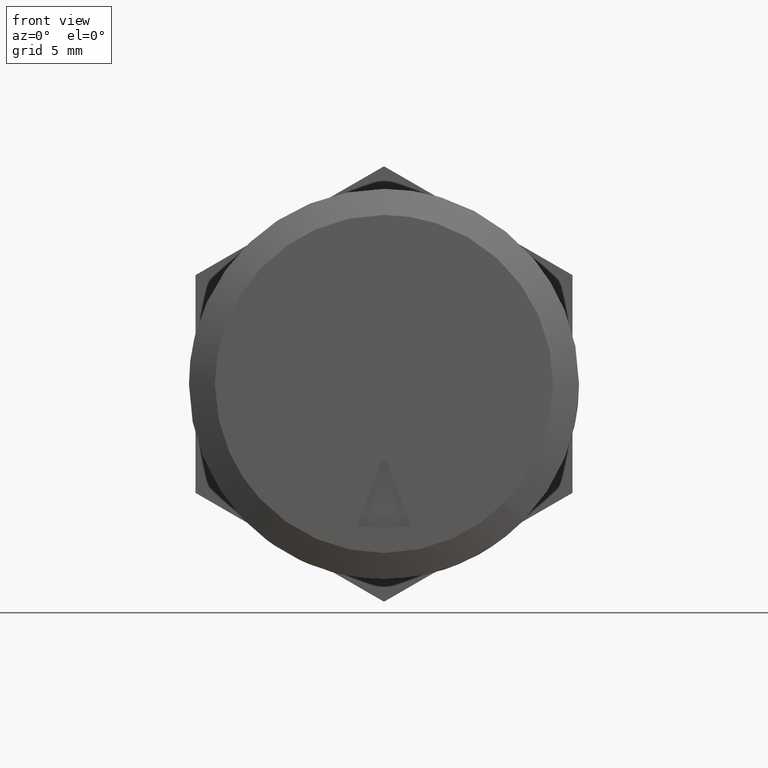
[diagram: clean part render]
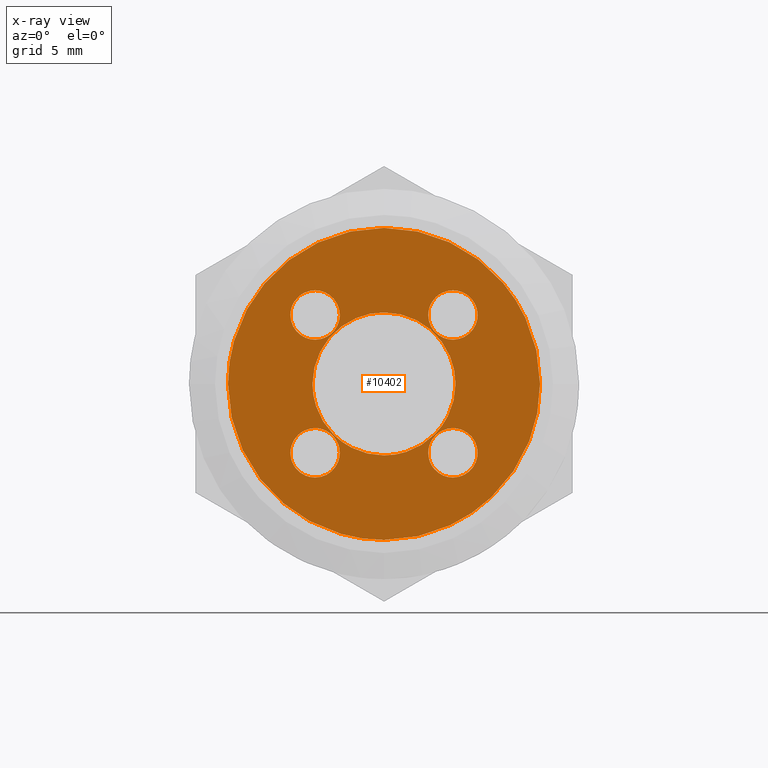
[diagram: x-ray — body ghosted, one internal face saturated and labeled with its STEP entity id]
A machine part, front view, then the same camera in x-ray: the body is ghosted and one INTERNAL B-rep face — a face not visible from any outside direction — is saturated and labeled: STEP entity #10402.
In plain terms, the highlighted face is a freeform B-spline surface patch.
Its self-contained STEP definition (entity closure, byte-faithful):
#8744=CARTESIAN_POINT('',(-1.900000000000000,-5.499999999999878,-0.000001159487556));
#8745=VERTEX_POINT('',#8744);
#8746=CARTESIAN_POINT('',(-1.900000144913863,-3.922877780427586,-3.855001258363628));
#8747=VERTEX_POINT('',#8746);
#8748=CARTESIAN_POINT('',(-1.900000000000000,-5.499999999999878,-0.000001159487556));
#8749=CARTESIAN_POINT('',(-1.900000021745562,-5.500256035758917,-0.578476942839209));
#8750=CARTESIAN_POINT('',(-1.900000061048671,-5.333541669358327,-1.624018445173064));
#8751=CARTESIAN_POINT('',(-1.900000109800236,-4.718162404846023,-2.920908463455525));
#8752=CARTESIAN_POINT('',(-1.900000134773875,-4.187996385018957,-3.585257172860245));
#8753=CARTESIAN_POINT('',(-1.900000144913863,-3.922877780427586,-3.855001258363628));
#8754=B_SPLINE_CURVE_WITH_KNOTS('',3,(#8748,#8749,#8750,#8751,#8752,#8753),.UNSPECIFIED.,.F.,.U.,(4,1,1,4),(0.000000028144667,1.735391692192443,3.137042397964578,4.271718564324931),.UNSPECIFIED.);
#8755=EDGE_CURVE('',#8745,#8747,#8754,.T.);
#8757=CARTESIAN_POINT('',(-1.900000000000000,0.0,5.500000000000000));
#8758=VERTEX_POINT('',#8757);
#8759=CARTESIAN_POINT('',(-1.900000000000000,0.0,5.500000000000000));
#8760=CARTESIAN_POINT('',(-1.900000000000003,-0.427471766125014,5.500069861130847));
#8761=CARTESIAN_POINT('',(-1.899999999999994,-1.304882114691370,5.397224140319601));
#8762=CARTESIAN_POINT('',(-1.900000000000001,-2.601071767974286,4.915565116795840));
#8763=CARTESIAN_POINT('',(-1.900000000000006,-3.603397544905781,4.209567924990979));
#8764=CARTESIAN_POINT('',(-1.899999999999998,-4.386389311207060,3.366537396547856));
#8765=CARTESIAN_POINT('',(-1.899999999999997,-4.911830123918239,2.547982802030945));
#8766=CARTESIAN_POINT('',(-1.900000000000006,-5.373012465752053,1.394763039153312));
#8767=CARTESIAN_POINT('',(-1.899999999999996,-5.500260434145294,0.539993329844090));
#8768=CARTESIAN_POINT('',(-1.900000000000000,-5.499999999999878,-0.000001159487556));
#8769=B_SPLINE_CURVE_WITH_KNOTS('',3,(#8759,#8760,#8761,#8762,#8763,#8764,#8765,#8766,#8767,#8768),.UNSPECIFIED.,.F.,.U.,(4,1,1,1,1,1,1,4),(0.000000112228303,1.282413280695518,2.632336100113950,4.117246115095687,4.927152487635967,6.074599980345520,7.019551738392568,8.639434659329234),.UNSPECIFIED.);
#8770=EDGE_CURVE('',#8758,#8745,#8769,.T.);
#8772=CARTESIAN_POINT('',(-1.900000000000000,5.499999999999878,0.000001159487478));
#8773=VERTEX_POINT('',#8772);
#8774=CARTESIAN_POINT('',(-1.900000000000000,5.499999999999878,0.000001159487478));
#8775=CARTESIAN_POINT('',(-1.900000000000003,5.500246139093367,0.539990094129131));
#8776=CARTESIAN_POINT('',(-1.899999999999998,5.369692831083753,1.417275894956246));
#8777=CARTESIAN_POINT('',(-1.900000000000002,4.926692798724795,2.505461571684657));
#8778=CARTESIAN_POINT('',(-1.899999999999998,4.412505536808818,3.328571445191206));
#8779=CARTESIAN_POINT('',(-1.900000000000005,3.854927591777241,3.951405387384738));
#8780=CARTESIAN_POINT('',(-1.899999999999998,3.196382955693775,4.498644622342848));
#8781=CARTESIAN_POINT('',(-1.900000000000003,2.485067710105123,4.936959871818087));
#8782=CARTESIAN_POINT('',(-1.899999999999998,1.394770400552940,5.373028578170522));
#8783=CARTESIAN_POINT('',(-1.900000000000002,0.539992265399040,5.500251964573114));
#8784=CARTESIAN_POINT('',(-1.900000000000000,0.0,5.500000000000000));
#8785=B_SPLINE_CURVE_WITH_KNOTS('',3,(#8774,#8775,#8776,#8777,#8778,#8779,#8780,#8781,#8782,#8783,#8784),.UNSPECIFIED.,.F.,.U.,(4,1,1,1,1,1,1,1,4),(0.000000112630241,1.619883118908328,2.632335702163530,3.509795483118065,4.522188778143863,5.129638733763747,6.074599061763889,7.019550676261298,8.639433352308371),.UNSPECIFIED.);
#8786=EDGE_CURVE('',#8773,#8758,#8785,.T.);
#8788=CARTESIAN_POINT('',(-1.899999855086133,3.855000648934801,-3.922877160268317));
#8789=VERTEX_POINT('',#8788);
#8790=CARTESIAN_POINT('',(-1.899999855086133,3.855000648934801,-3.922877160268317));
#8791=CARTESIAN_POINT('',(-1.899999865098265,4.130848320214632,-3.651844533393396));
#8792=CARTESIAN_POINT('',(-1.899999889891083,4.683297676475686,-2.980692893815518));
#8793=CARTESIAN_POINT('',(-1.899999938660321,5.325869627670055,-1.660488900340414));
#8794=CARTESIAN_POINT('',(-1.899999978150187,5.500308202324487,-0.591482581261859));
#8795=CARTESIAN_POINT('',(-1.900000000000000,5.499999999999878,0.000001159487478));
#8796=B_SPLINE_CURVE_WITH_KNOTS('',3,(#8790,#8791,#8792,#8793,#8794,#8795),.UNSPECIFIED.,.F.,.U.,(4,1,1,4),(0.000000031433248,1.160175436621289,2.593324617411317,4.367715457707561),.UNSPECIFIED.);
#8797=EDGE_CURVE('',#8789,#8773,#8796,.T.);
#8898=CARTESIAN_POINT('',(-1.900000000000000,0.0,-5.500000000000000));
#8899=VERTEX_POINT('',#8898);
#8900=CARTESIAN_POINT('',(-1.900000144913863,-3.922877780427586,-3.855001258363628));
#8901=CARTESIAN_POINT('',(-1.900000136079789,-3.683735856855880,-4.098409301250761));
#8902=CARTESIAN_POINT('',(-1.900000117375042,-3.177390477443772,-4.525727324279440));
#8903=CARTESIAN_POINT('',(-1.900000082993953,-2.246680484338069,-5.060132092102045));
#8904=CARTESIAN_POINT('',(-1.900000043697219,-1.182901614092432,-5.415707147317415));
#8905=CARTESIAN_POINT('',(-1.900000014285890,-0.386724948520046,-5.500049172976234));
#8906=CARTESIAN_POINT('',(-1.900000000000000,0.0,-5.500000000000000));
#8907=B_SPLINE_CURVE_WITH_KNOTS('',3,(#8900,#8901,#8902,#8903,#8904,#8905,#8906),.UNSPECIFIED.,.F.,.U.,(4,1,1,1,4),(0.000000031421866,1.023682148530090,1.979125426225063,3.207539454538742,4.367714643439112),.UNSPECIFIED.);
#8908=EDGE_CURVE('',#8747,#8899,#8907,.T.);
#8933=CARTESIAN_POINT('',(-1.900000000000000,0.0,-5.500000000000000));
#8934=CARTESIAN_POINT('',(-1.899999978254219,0.578481605489840,-5.500281685858573));
#8935=CARTESIAN_POINT('',(-1.899999938951707,1.624007376511118,-5.333508787037555));
#8936=CARTESIAN_POINT('',(-1.899999890199565,2.920912828327305,-4.718174244668924));
#8937=CARTESIAN_POINT('',(-1.899999865226165,3.585255264861009,-4.187993752593749));
#8938=CARTESIAN_POINT('',(-1.899999855086133,3.855000648934801,-3.922877160268317));
#8939=B_SPLINE_CURVE_WITH_KNOTS('',3,(#8933,#8934,#8935,#8936,#8937,#8938),.UNSPECIFIED.,.F.,.U.,(4,1,1,4),(0.000000028134092,1.735392026104024,3.137043001537592,4.271719386180386),.UNSPECIFIED.);
#8940=EDGE_CURVE('',#8899,#8789,#8939,.T.);
#8984=CARTESIAN_POINT('',(-1.900000000000000,6.750756020355018,4.073089754527432));
#8985=VERTEX_POINT('',#8984);
#8991=CARTESIAN_POINT('',(-1.900000000000000,5.300000000000000,3.400000000000000));
#8992=VERTEX_POINT('',#8991);
#8993=CARTESIAN_POINT('',(-1.900000000000000,6.750756020355018,4.073089754527432));
#8994=CARTESIAN_POINT('',(-1.899999999999999,6.584410424872975,3.875897173757073));
#8995=CARTESIAN_POINT('',(-1.900000000000001,6.252654712064532,3.616342403200095));
#8996=CARTESIAN_POINT('',(-1.899999999999999,5.729863795769842,3.431872732759384));
#8997=CARTESIAN_POINT('',(-1.900000000000000,5.437562036558970,3.399983187578748));
#8998=CARTESIAN_POINT('',(-1.900000000000000,5.300000000000000,3.400000000000000));
#8999=B_SPLINE_CURVE_WITH_KNOTS('',3,(#8993,#8994,#8995,#8996,#8997,#8998),.UNSPECIFIED.,.F.,.U.,(4,1,1,4),(0.000000034004815,0.773803736119652,1.238080433504584,1.650773880218344),.UNSPECIFIED.);
#9000=EDGE_CURVE('',#8985,#8992,#8999,.T.);
#9002=CARTESIAN_POINT('',(-1.900000000000000,3.400000000000952,5.300001901169807));
#9003=VERTEX_POINT('',#9002);
#9004=CARTESIAN_POINT('',(-1.900000000000000,5.300000000000000,3.400000000000000));
#9005=CARTESIAN_POINT('',(-1.900000000000001,5.035676603651211,3.399635109457191));
#9006=CARTESIAN_POINT('',(-1.900000000000002,4.600753760659374,3.492373826798862));
#9007=CARTESIAN_POINT('',(-1.899999999999997,4.066536850233070,3.821534553216335));
#9008=CARTESIAN_POINT('',(-1.900000000000002,3.728876615567380,4.194124201753500));
#9009=CARTESIAN_POINT('',(-1.899999999999995,3.469604805633634,4.693910568922068));
#9010=CARTESIAN_POINT('',(-1.900000000000003,3.399781939520689,5.066797571958817));
#9011=CARTESIAN_POINT('',(-1.900000000000000,3.400000000000952,5.300001901169807));
#9012=B_SPLINE_CURVE_WITH_KNOTS('',3,(#9004,#9005,#9006,#9007,#9008,#9009,#9010,#9011),.UNSPECIFIED.,.F.,.U.,(4,1,1,1,1,4),(0.000000162534121,0.792783115249452,1.305784659463412,1.865346624258268,2.285077323863607,2.984588985802690),.UNSPECIFIED.);
#9013=EDGE_CURVE('',#8992,#9003,#9012,.T.);
#9015=CARTESIAN_POINT('',(-1.900000000000000,5.300000000000000,7.200000000000000));
#9016=VERTEX_POINT('',#9015);
#9017=CARTESIAN_POINT('',(-1.900000000000000,3.400000000000952,5.300001901169807));
#9018=CARTESIAN_POINT('',(-1.900000000000006,3.399891547411104,5.502090334163723));
#9019=CARTESIAN_POINT('',(-1.899999999999989,3.452599069752543,5.828434375074056));
#9020=CARTESIAN_POINT('',(-1.900000000000007,3.674067261422702,6.328283465089922));
#9021=CARTESIAN_POINT('',(-1.899999999999995,3.974233911688764,6.694087187392213));
#9022=CARTESIAN_POINT('',(-1.900000000000005,4.357465774557809,6.963803820689980));
#9023=CARTESIAN_POINT('',(-1.899999999999997,4.771557068126454,7.147412318703127));
#9024=CARTESIAN_POINT('',(-1.900000000000003,5.097910913390828,7.200109657193500));
#9025=CARTESIAN_POINT('',(-1.900000000000000,5.300000000000000,7.200000000000000));
#9026=B_SPLINE_CURVE_WITH_KNOTS('',3,(#9017,#9018,#9019,#9020,#9021,#9022,#9023,#9024,#9025),.UNSPECIFIED.,.F.,.U.,(4,1,1,1,1,1,4),(0.000000165135894,0.606236166463075,0.979317983312649,1.632161870885991,2.005268255849750,2.378350895070423,2.984586842687752),.UNSPECIFIED.);
#9027=EDGE_CURVE('',#9003,#9016,#9026,.T.);
#9029=CARTESIAN_POINT('',(-1.900000000000000,6.607873367265194,6.678210960470915));
#9030=VERTEX_POINT('',#9029);
#9031=CARTESIAN_POINT('',(-1.900000000000000,5.300000000000000,7.200000000000000));
#9032=CARTESIAN_POINT('',(-1.899999999999999,5.555497670276352,7.200323593245508));
#9033=CARTESIAN_POINT('',(-1.900000000000006,6.036035061401725,7.101415081056256));
#9034=CARTESIAN_POINT('',(-1.899999999999995,6.444485630257391,6.833511376513540));
#9035=CARTESIAN_POINT('',(-1.900000000000000,6.607873367265194,6.678210960470915));
#9036=B_SPLINE_CURVE_WITH_KNOTS('',3,(#9031,#9032,#9033,#9034,#9035),.UNSPECIFIED.,.F.,.U.,(4,1,4),(0.000000040131645,0.766343382260520,1.442548272464375),.UNSPECIFIED.);
#9037=EDGE_CURVE('',#9016,#9030,#9036,.T.);
#9119=CARTESIAN_POINT('',(-1.900000000000000,7.199999999999049,5.299998098830194));
#9120=VERTEX_POINT('',#9119);
#9121=CARTESIAN_POINT('',(-1.900000000000000,6.607873367265194,6.678210960470915));
#9122=CARTESIAN_POINT('',(-1.900000000000008,6.806287992045338,6.490502806594102));
#9123=CARTESIAN_POINT('',(-1.899999999999985,7.100818650513988,6.054763383722621));
#9124=CARTESIAN_POINT('',(-1.900000000000009,7.200236050398095,5.540971461369709));
#9125=CARTESIAN_POINT('',(-1.900000000000000,7.199999999999049,5.299998098830194));
#9126=B_SPLINE_CURVE_WITH_KNOTS('',3,(#9121,#9122,#9123,#9124,#9125),.UNSPECIFIED.,.F.,.U.,(4,1,4),(0.000000039091810,0.819201761397435,1.542041419103935),.UNSPECIFIED.);
#9127=EDGE_CURVE('',#9030,#9120,#9126,.T.);
#9129=CARTESIAN_POINT('',(-1.900000000000000,7.199999999999049,5.299998098830194));
#9130=CARTESIAN_POINT('',(-1.899999999999999,7.200060493483186,5.119376940979016));
#9131=CARTESIAN_POINT('',(-1.900000000000008,7.136144441801891,4.674796234144504));
#9132=CARTESIAN_POINT('',(-1.899999999999991,6.921545730710995,4.274467089592965));
#9133=CARTESIAN_POINT('',(-1.900000000000000,6.750756020355018,4.073089754527432));
#9134=B_SPLINE_CURVE_WITH_KNOTS('',3,(#9129,#9130,#9131,#9132,#9133),.UNSPECIFIED.,.F.,.U.,(4,1,4),(0.000000036649615,0.541870521184850,1.333815032398454),.UNSPECIFIED.);
#9135=EDGE_CURVE('',#9120,#8985,#9134,.T.);
#9180=CARTESIAN_POINT('',(-1.900000000000000,6.750756020355019,-6.526910245472566));
#9181=VERTEX_POINT('',#9180);
#9187=CARTESIAN_POINT('',(-1.900000000000000,5.300000000000000,-7.200000000000000));
#9188=VERTEX_POINT('',#9187);
#9189=CARTESIAN_POINT('',(-1.900000000000000,6.750756020355019,-6.526910245472566));
#9190=CARTESIAN_POINT('',(-1.900000000000001,6.650853976626253,-6.645106891841190));
#9191=CARTESIAN_POINT('',(-1.899999999999999,6.434643881305941,-6.845053541992979));
#9192=CARTESIAN_POINT('',(-1.900000000000002,5.953206269034140,-7.118185023990684));
#9193=CARTESIAN_POINT('',(-1.899999999999998,5.557985295778908,-7.200312973364336));
#9194=CARTESIAN_POINT('',(-1.900000000000000,5.300000000000000,-7.200000000000000));
#9195=B_SPLINE_CURVE_WITH_KNOTS('',3,(#9189,#9190,#9191,#9192,#9193,#9194),.UNSPECIFIED.,.F.,.U.,(4,1,1,4),(0.000000034004507,0.464283210153325,0.876969463910795,1.650773880218345),.UNSPECIFIED.);
#9196=EDGE_CURVE('',#9181,#9188,#9195,.T.);
#9198=CARTESIAN_POINT('',(-1.900000000000000,3.400000000000952,-5.299998098830193));
#9199=VERTEX_POINT('',#9198);
#9200=CARTESIAN_POINT('',(-1.900000000000000,5.300000000000000,-7.200000000000000));
#9201=CARTESIAN_POINT('',(-1.900000000000001,5.097914048860588,-7.200104723550976));
#9202=CARTESIAN_POINT('',(-1.899999999999998,4.756003913662746,-7.144917567819674));
#9203=CARTESIAN_POINT('',(-1.900000000000003,4.343667706537216,-6.955994444863758));
#9204=CARTESIAN_POINT('',(-1.899999999999996,4.002229438447227,-6.709261452162714));
#9205=CARTESIAN_POINT('',(-1.900000000000007,3.721699259168628,-6.391977850986773));
#9206=CARTESIAN_POINT('',(-1.899999999999991,3.469588961278545,-5.906098011681480));
#9207=CARTESIAN_POINT('',(-1.900000000000005,3.399786817767295,-5.533199377372097));
#9208=CARTESIAN_POINT('',(-1.900000000000000,3.400000000000952,-5.299998098830193));
#9209=B_SPLINE_CURVE_WITH_KNOTS('',3,(#9200,#9201,#9202,#9203,#9204,#9205,#9206,#9207,#9208),.UNSPECIFIED.,.F.,.U.,(4,1,1,1,1,1,4),(0.000000162533136,0.606236599536032,1.025962481841940,1.352426034539171,1.865346624257962,2.285077323863459,2.984588985802698),.UNSPECIFIED.);
#9210=EDGE_CURVE('',#9188,#9199,#9209,.T.);
#9212=CARTESIAN_POINT('',(-1.900000000000000,5.300000000000000,-3.400000000000000));
#9213=VERTEX_POINT('',#9212);
#9214=CARTESIAN_POINT('',(-1.900000000000000,3.400000000000952,-5.299998098830193));
#9215=CARTESIAN_POINT('',(-1.900000000000003,3.399639464346517,-5.035667419093749));
#9216=CARTESIAN_POINT('',(-1.899999999999996,3.479131938509391,-4.662905889383979));
#9217=CARTESIAN_POINT('',(-1.900000000000004,3.742489193767629,-4.184519123540714));
#9218=CARTESIAN_POINT('',(-1.899999999999996,4.033400365013573,-3.855466246091830));
#9219=CARTESIAN_POINT('',(-1.900000000000004,4.385022140253471,-3.620574354559421));
#9220=CARTESIAN_POINT('',(-1.899999999999996,4.802648583389670,-3.447581547689108));
#9221=CARTESIAN_POINT('',(-1.900000000000004,5.097907336834509,-3.399888005074136));
#9222=CARTESIAN_POINT('',(-1.900000000000000,5.300000000000000,-3.400000000000000));
#9223=B_SPLINE_CURVE_WITH_KNOTS('',3,(#9214,#9215,#9216,#9217,#9218,#9219,#9220,#9221,#9222),.UNSPECIFIED.,.F.,.U.,(4,1,1,1,1,1,4),(0.000000165136518,0.792782548036429,1.119241596416902,1.632161870886105,2.098529449097416,2.378350895070473,2.984586842687742),.UNSPECIFIED.);
#9224=EDGE_CURVE('',#9199,#9213,#9223,.T.);
#9226=CARTESIAN_POINT('',(-1.900000000000000,6.607873367265194,-3.921789039529084));
#9227=VERTEX_POINT('',#9226);
#9228=CARTESIAN_POINT('',(-1.900000000000000,5.300000000000000,-3.400000000000000));
#9229=CARTESIAN_POINT('',(-1.900000000000000,5.525420902281883,-3.399818792029521));
#9230=CARTESIAN_POINT('',(-1.900000000000001,6.006108303664526,-3.486644563152126));
#9231=CARTESIAN_POINT('',(-1.899999999999998,6.422766276723548,-3.745682800814752));
#9232=CARTESIAN_POINT('',(-1.900000000000000,6.607873367265194,-3.921789039529084));
#9233=B_SPLINE_CURVE_WITH_KNOTS('',3,(#9228,#9229,#9230,#9231,#9232),.UNSPECIFIED.,.F.,.U.,(4,1,4),(0.000000040131739,0.676204930341097,1.442548272464372),.UNSPECIFIED.);
#9234=EDGE_CURVE('',#9213,#9227,#9233,.T.);
#9314=CARTESIAN_POINT('',(-1.900000000000000,7.199999999999050,-5.300001901169805));
#9315=VERTEX_POINT('',#9314);
#9316=CARTESIAN_POINT('',(-1.900000000000000,6.607873367265194,-3.921789039529084));
#9317=CARTESIAN_POINT('',(-1.900000000000000,6.759454284218464,-4.065442851486957));
#9318=CARTESIAN_POINT('',(-1.900000000000001,6.965271073740087,-4.338434646572641));
#9319=CARTESIAN_POINT('',(-1.899999999999998,7.157115383089360,-4.818158480626021));
#9320=CARTESIAN_POINT('',(-1.900000000000007,7.200058798883083,-5.123306827629951));
#9321=CARTESIAN_POINT('',(-1.900000000000000,7.199999999999050,-5.300001901169805));
#9322=B_SPLINE_CURVE_WITH_KNOTS('',3,(#9316,#9317,#9318,#9319,#9320,#9321),.UNSPECIFIED.,.F.,.U.,(4,1,1,4),(0.000000039091806,0.626466365211643,1.011957675269188,1.542041419103938),.UNSPECIFIED.);
#9323=EDGE_CURVE('',#9227,#9315,#9322,.T.);
#9325=CARTESIAN_POINT('',(-1.900000000000000,7.199999999999050,-5.300001901169805));
#9326=CARTESIAN_POINT('',(-1.900000000000002,7.200356162260095,-5.564048558378485));
#9327=CARTESIAN_POINT('',(-1.900000000000005,7.105731322963280,-6.008303196902142));
#9328=CARTESIAN_POINT('',(-1.899999999999999,6.867432772587786,-6.389033523614989));
#9329=CARTESIAN_POINT('',(-1.900000000000000,6.750756020355019,-6.526910245472566));
#9330=B_SPLINE_CURVE_WITH_KNOTS('',3,(#9325,#9326,#9327,#9328,#9329),.UNSPECIFIED.,.F.,.U.,(4,1,4),(0.000000036649598,0.791944547770113,1.333815032398450),.UNSPECIFIED.);
#9331=EDGE_CURVE('',#9315,#9181,#9330,.T.);
#9376=CARTESIAN_POINT('',(-1.900000000000000,-3.849243979644980,-6.526910245472566));
#9377=VERTEX_POINT('',#9376);
#9383=CARTESIAN_POINT('',(-1.900000000000000,-5.300000000000000,-7.200000000000000));
#9384=VERTEX_POINT('',#9383);
#9385=CARTESIAN_POINT('',(-1.900000000000000,-3.849243979644980,-6.526910245472566));
#9386=CARTESIAN_POINT('',(-1.899999999999997,-3.993488804206907,-6.697710795570786));
#9387=CARTESIAN_POINT('',(-1.900000000000007,-4.275936143937656,-6.931590125172010));
#9388=CARTESIAN_POINT('',(-1.899999999999990,-4.784195124608799,-7.150787274206416));
#9389=CARTESIAN_POINT('',(-1.900000000000008,-5.110844721718893,-7.200086262399736));
#9390=CARTESIAN_POINT('',(-1.900000000000000,-5.300000000000000,-7.200000000000000));
#9391=B_SPLINE_CURVE_WITH_KNOTS('',3,(#9385,#9386,#9387,#9388,#9389,#9390),.UNSPECIFIED.,.F.,.U.,(4,1,1,4),(0.000000034004644,0.670633984638421,1.083313145543527,1.650773880218346),.UNSPECIFIED.);
#9392=EDGE_CURVE('',#9377,#9384,#9391,.T.);
#9394=CARTESIAN_POINT('',(-1.900000000000000,-7.199999999999049,-5.299998098830193));
#9395=VERTEX_POINT('',#9394);
#9396=CARTESIAN_POINT('',(-1.900000000000000,-5.300000000000000,-7.200000000000000));
#9397=CARTESIAN_POINT('',(-1.899999999999999,-5.502091232488508,-7.200111359665524));
#9398=CARTESIAN_POINT('',(-1.900000000000008,-5.828437496969099,-7.147406068503431));
#9399=CARTESIAN_POINT('',(-1.899999999999992,-6.271112101988006,-6.951166051757691));
#9400=CARTESIAN_POINT('',(-1.900000000000008,-6.648554833345183,-6.671327233027961));
#9401=CARTESIAN_POINT('',(-1.899999999999988,-6.938545735941256,-6.299681375333021));
#9402=CARTESIAN_POINT('',(-1.900000000000013,-7.147410693195663,-5.828440226006670));
#9403=CARTESIAN_POINT('',(-1.899999999999981,-7.200107731196805,-5.502085307946213));
#9404=CARTESIAN_POINT('',(-1.900000000000000,-7.199999999999049,-5.299998098830193));
#9405=B_SPLINE_CURVE_WITH_KNOTS('',3,(#9396,#9397,#9398,#9399,#9400,#9401,#9402,#9403,#9404),.UNSPECIFIED.,.F.,.U.,(4,1,1,1,1,1,4),(0.000000162533939,0.606236599536650,0.979318683866979,1.445682277161053,2.005269692858530,2.378352603718776,2.984588985802680),.UNSPECIFIED.);
#9406=EDGE_CURVE('',#9384,#9395,#9405,.T.);
#9408=CARTESIAN_POINT('',(-1.900000000000000,-5.300000000000000,-3.400000000000000));
#9409=VERTEX_POINT('',#9408);
#9410=CARTESIAN_POINT('',(-1.900000000000000,-7.199999999999049,-5.299998098830193));
#9411=CARTESIAN_POINT('',(-1.899999999999999,-7.200109141227341,-5.097909549351357));
#9412=CARTESIAN_POINT('',(-1.900000000000005,-7.147415522702406,-4.771554490591941));
#9413=CARTESIAN_POINT('',(-1.899999999999996,-6.970123863534727,-4.371752603266804));
#9414=CARTESIAN_POINT('',(-1.900000000000001,-6.705462609337952,-3.985639657289564));
#9415=CARTESIAN_POINT('',(-1.900000000000004,-6.342593779101753,-3.680366040946030));
#9416=CARTESIAN_POINT('',(-1.899999999999997,-5.828425377808069,-3.452606541138005));
#9417=CARTESIAN_POINT('',(-1.900000000000002,-5.502089170720735,-3.399890548733198));
#9418=CARTESIAN_POINT('',(-1.900000000000000,-5.300000000000000,-3.400000000000000));
#9419=B_SPLINE_CURVE_WITH_KNOTS('',3,(#9410,#9411,#9412,#9413,#9414,#9415,#9416,#9417,#9418),.UNSPECIFIED.,.F.,.U.,(4,1,1,1,1,1,4),(0.000000165136876,0.606236166463825,0.979317983313201,1.305783722720979,2.005268255849917,2.378350895070504,2.984586842687743),.UNSPECIFIED.);
#9420=EDGE_CURVE('',#9395,#9409,#9419,.T.);
#9422=CARTESIAN_POINT('',(-1.900000000000000,-3.992126632734806,-3.921789039529085));
#9423=VERTEX_POINT('',#9422);
#9424=CARTESIAN_POINT('',(-1.900000000000000,-5.300000000000000,-3.400000000000000));
#9425=CARTESIAN_POINT('',(-1.899999999999999,-5.044512844154999,-3.399696109899645));
#9426=CARTESIAN_POINT('',(-1.900000000000004,-4.563941389186847,-3.498556207570266));
#9427=CARTESIAN_POINT('',(-1.899999999999995,-4.155528372780783,-3.766504980772711));
#9428=CARTESIAN_POINT('',(-1.900000000000000,-3.992126632734806,-3.921789039529085));
#9429=B_SPLINE_CURVE_WITH_KNOTS('',3,(#9424,#9425,#9426,#9427,#9428),.UNSPECIFIED.,.F.,.U.,(4,1,4),(0.000000040131839,0.766343382260610,1.442548272464371),.UNSPECIFIED.);
#9430=EDGE_CURVE('',#9409,#9423,#9429,.T.);
#9511=CARTESIAN_POINT('',(-1.900000000000000,-3.400000000000952,-5.300001901169807));
#9512=VERTEX_POINT('',#9511);
#9513=CARTESIAN_POINT('',(-1.900000000000000,-3.992126632734806,-3.921789039529085));
#9514=CARTESIAN_POINT('',(-1.900000000000003,-3.793723081810244,-4.109503431990625));
#9515=CARTESIAN_POINT('',(-1.899999999999992,-3.499176091223556,-4.545239945431748));
#9516=CARTESIAN_POINT('',(-1.900000000000008,-3.399764244794652,-5.059026194017311));
#9517=CARTESIAN_POINT('',(-1.900000000000000,-3.400000000000952,-5.300001901169807));
#9518=B_SPLINE_CURVE_WITH_KNOTS('',3,(#9513,#9514,#9515,#9516,#9517),.UNSPECIFIED.,.F.,.U.,(4,1,4),(0.000000039091600,0.819201761397359,1.542041419103937),.UNSPECIFIED.);
#9519=EDGE_CURVE('',#9423,#9512,#9518,.T.);
#9521=CARTESIAN_POINT('',(-1.900000000000000,-3.400000000000952,-5.300001901169807));
#9522=CARTESIAN_POINT('',(-1.900000000000001,-3.399633413769578,-5.564049671047439));
#9523=CARTESIAN_POINT('',(-1.899999999999991,-3.494278715737076,-6.008300269795381));
#9524=CARTESIAN_POINT('',(-1.900000000000009,-3.732564011491960,-6.389035381184918));
#9525=CARTESIAN_POINT('',(-1.900000000000000,-3.849243979644980,-6.526910245472566));
#9526=B_SPLINE_CURVE_WITH_KNOTS('',3,(#9521,#9522,#9523,#9524,#9525),.UNSPECIFIED.,.F.,.U.,(4,1,4),(0.000000036649686,0.791944547770065,1.333815032398450),.UNSPECIFIED.);
#9527=EDGE_CURVE('',#9512,#9377,#9526,.T.);
#9572=CARTESIAN_POINT('',(-1.900000000000000,-3.849243979644981,4.073089754527432));
#9573=VERTEX_POINT('',#9572);
#9579=CARTESIAN_POINT('',(-1.900000000000000,-5.300000000000000,3.400000000000000));
#9580=VERTEX_POINT('',#9579);
#9581=CARTESIAN_POINT('',(-1.900000000000000,-3.849243979644981,4.073089754527432));
#9582=CARTESIAN_POINT('',(-1.900000000000002,-3.993489575191456,3.902288507391634));
#9583=CARTESIAN_POINT('',(-1.899999999999998,-4.275934809679731,3.668410755342694));
#9584=CARTESIAN_POINT('',(-1.899999999999999,-4.784196426568046,3.449212146345920));
#9585=CARTESIAN_POINT('',(-1.900000000000002,-5.110843769397677,3.399913742795054));
#9586=CARTESIAN_POINT('',(-1.900000000000000,-5.300000000000000,3.400000000000000));
#9587=B_SPLINE_CURVE_WITH_KNOTS('',3,(#9581,#9582,#9583,#9584,#9585,#9586),.UNSPECIFIED.,.F.,.U.,(4,1,1,4),(0.000000034004364,0.670633984638327,1.083313145543489,1.650773880218343),.UNSPECIFIED.);
#9588=EDGE_CURVE('',#9573,#9580,#9587,.T.);
#9590=CARTESIAN_POINT('',(-1.900000000000000,-7.199999999999049,5.300001901169807));
#9591=VERTEX_POINT('',#9590);
#9592=CARTESIAN_POINT('',(-1.900000000000000,-5.300000000000000,3.400000000000000));
#9593=CARTESIAN_POINT('',(-1.899999999999998,-5.502086596217587,3.399899619658779));
#9594=CARTESIAN_POINT('',(-1.900000000000001,-5.875085643662080,3.460079595634721));
#9595=CARTESIAN_POINT('',(-1.900000000000004,-6.312095398445124,3.673396185385656));
#9596=CARTESIAN_POINT('',(-1.899999999999998,-6.677543986128834,3.965868734933751));
#9597=CARTESIAN_POINT('',(-1.899999999999999,-6.957906326362131,4.325080278404626));
#9598=CARTESIAN_POINT('',(-1.899999999999993,-7.155627422632905,4.802611479612847));
#9599=CARTESIAN_POINT('',(-1.899999999999994,-7.200057193609180,5.129008733621578));
#9600=CARTESIAN_POINT('',(-1.900000000000000,-7.199999999999049,5.300001901169807));
#9601=B_SPLINE_CURVE_WITH_KNOTS('',3,(#9592,#9593,#9594,#9595,#9596,#9597,#9598,#9599,#9600),.UNSPECIFIED.,.F.,.U.,(4,1,1,1,1,1,4),(0.000000162534276,0.606236599536857,1.119242397610082,1.445682277161154,2.005269692858603,2.471613864464846,2.984588985802677),.UNSPECIFIED.);
#9602=EDGE_CURVE('',#9580,#9591,#9601,.T.);
#9604=CARTESIAN_POINT('',(-1.900000000000000,-5.300000000000000,7.200000000000000));
#9605=VERTEX_POINT('',#9604);
#9606=CARTESIAN_POINT('',(-1.900000000000000,-7.199999999999049,5.300001901169807));
#9607=CARTESIAN_POINT('',(-1.900000000000002,-7.200041339092439,5.470989584046275));
#9608=CARTESIAN_POINT('',(-1.899999999999996,-7.149359423793240,5.844055901027872));
#9609=CARTESIAN_POINT('',(-1.900000000000005,-6.919959102670098,6.345024146520235));
#9610=CARTESIAN_POINT('',(-1.900000000000003,-6.618535322914664,6.685743053670473));
#9611=CARTESIAN_POINT('',(-1.900000000000000,-6.283905135112471,6.940371501661420));
#9612=CARTESIAN_POINT('',(-1.900000000000005,-5.875087593254899,7.139913977544582));
#9613=CARTESIAN_POINT('',(-1.899999999999987,-5.502087790038648,7.200112490500858));
#9614=CARTESIAN_POINT('',(-1.900000000000000,-5.300000000000000,7.200000000000000));
#9615=B_SPLINE_CURVE_WITH_KNOTS('',3,(#9606,#9607,#9608,#9609,#9610,#9611,#9612,#9613,#9614),.UNSPECIFIED.,.F.,.U.,(4,1,1,1,1,1,4),(0.000000165135956,0.512973547624951,1.119241596416551,1.632161870885877,1.865345284158497,2.378350895070369,2.984586842687754),.UNSPECIFIED.);
#9616=EDGE_CURVE('',#9591,#9605,#9615,.T.);
#9618=CARTESIAN_POINT('',(-1.900000000000000,-3.992126632734806,6.678210960470915));
#9619=VERTEX_POINT('',#9618);
#9620=CARTESIAN_POINT('',(-1.900000000000000,-5.300000000000000,7.200000000000000));
#9621=CARTESIAN_POINT('',(-1.900000000000000,-5.044503264082087,7.200322414781941));
#9622=CARTESIAN_POINT('',(-1.900000000000003,-4.563963052839743,7.101416031798752));
#9623=CARTESIAN_POINT('',(-1.899999999999996,-4.155515618402750,6.833511154669899));
#9624=CARTESIAN_POINT('',(-1.900000000000000,-3.992126632734806,6.678210960470915));
#9625=B_SPLINE_CURVE_WITH_KNOTS('',3,(#9620,#9621,#9622,#9623,#9624),.UNSPECIFIED.,.F.,.U.,(4,1,4),(0.000000040131684,0.766343382260566,1.442548272464373),.UNSPECIFIED.);
#9626=EDGE_CURVE('',#9605,#9619,#9625,.T.);
#9706=CARTESIAN_POINT('',(-1.900000000000000,-3.400000000000952,5.299998098830193));
#9707=VERTEX_POINT('',#9706);
#9708=CARTESIAN_POINT('',(-1.900000000000000,-3.992126632734806,6.678210960470915));
#9709=CARTESIAN_POINT('',(-1.900000000000009,-3.793710048198245,6.490503512988768));
#9710=CARTESIAN_POINT('',(-1.899999999999985,-3.499182976596421,6.054762837033432));
#9711=CARTESIAN_POINT('',(-1.900000000000010,-3.399763500116127,5.540971615422421));
#9712=CARTESIAN_POINT('',(-1.900000000000000,-3.400000000000952,5.299998098830193));
#9713=B_SPLINE_CURVE_WITH_KNOTS('',3,(#9708,#9709,#9710,#9711,#9712),.UNSPECIFIED.,.F.,.U.,(4,1,4),(0.000000039091623,0.819201761397366,1.542041419103935),.UNSPECIFIED.);
#9714=EDGE_CURVE('',#9619,#9707,#9713,.T.);
#9716=CARTESIAN_POINT('',(-1.900000000000000,-3.400000000000952,5.299998098830193));
#9717=CARTESIAN_POINT('',(-1.899999999999997,-3.399770528741461,5.063776022526660));
#9718=CARTESIAN_POINT('',(-1.900000000000010,-3.484084942236621,4.619375031603923));
#9719=CARTESIAN_POINT('',(-1.899999999999997,-3.714552267879121,4.232148303711997));
#9720=CARTESIAN_POINT('',(-1.900000000000000,-3.849243979644981,4.073089754527432));
#9721=B_SPLINE_CURVE_WITH_KNOTS('',3,(#9716,#9717,#9718,#9719,#9720),.UNSPECIFIED.,.F.,.U.,(4,1,4),(0.000000036649606,0.708577325808372,1.333815032398452),.UNSPECIFIED.);
#9722=EDGE_CURVE('',#9707,#9573,#9721,.T.);
#9760=CARTESIAN_POINT('',(-1.900000000000000,-8.260254612327495,-8.704492180909549));
#9761=VERTEX_POINT('',#9760);
#9767=CARTESIAN_POINT('',(-1.900000000000000,0.0,-12.0));
#9768=VERTEX_POINT('',#9767);
#9769=CARTESIAN_POINT('',(-1.900000000000000,0.0,-12.0));
#9770=CARTESIAN_POINT('',(-1.900000000000001,-0.996495838977112,-12.000263542942029));
#9771=CARTESIAN_POINT('',(-1.900000000000004,-2.752070037935048,-11.780020592730120));
#9772=CARTESIAN_POINT('',(-1.899999999999996,-4.905908046272999,-11.008290719065560));
#9773=CARTESIAN_POINT('',(-1.900000000000009,-6.696234903183996,-10.020488205521090));
#9774=CARTESIAN_POINT('',(-1.899999999999992,-7.709589559331541,-9.227166655075669));
#9775=CARTESIAN_POINT('',(-1.900000000000000,-8.260254612327495,-8.704492180909549));
#9776=B_SPLINE_CURVE_WITH_KNOTS('',3,(#9769,#9770,#9771,#9772,#9773,#9774,#9775),.UNSPECIFIED.,.F.,.U.,(4,1,1,1,4),(6.731145E-009,2.989445327178567,5.267099993083426,6.833003951646302,9.110671933275430),.UNSPECIFIED.);
#9777=EDGE_CURVE('',#9768,#9761,#9776,.T.);
#9779=CARTESIAN_POINT('',(-1.900000000000000,11.999999999999890,-0.000001604199330));
#9780=VERTEX_POINT('',#9779);
#9781=CARTESIAN_POINT('',(-1.900000000000000,11.999999999999890,-0.000001604199330));
#9782=CARTESIAN_POINT('',(-1.899999999999992,12.000060088576980,-0.687226287338981));
#9783=CARTESIAN_POINT('',(-1.900000000000009,11.902733117542130,-1.816206778058789));
#9784=CARTESIAN_POINT('',(-1.899999999999992,11.471186052429310,-3.684350327938885));
#9785=CARTESIAN_POINT('',(-1.900000000000005,10.995161678751909,-4.875155484805951));
#9786=CARTESIAN_POINT('',(-1.900000000000000,10.594832364439959,-5.635241945877278));
#9787=CARTESIAN_POINT('',(-1.900000000000002,10.547871040448319,-5.721455413683919));
#9788=CARTESIAN_POINT('',(-1.899999999999982,10.512947575133211,-5.786274705666262));
#9789=CARTESIAN_POINT('',(-1.900000000000029,10.144055131668770,-6.451740114541154));
#9790=CARTESIAN_POINT('',(-1.899999999999945,9.366775935413184,-7.591865767257243));
#9791=CARTESIAN_POINT('',(-1.900000000000024,8.409991338463117,-8.584683505584051));
#9792=CARTESIAN_POINT('',(-1.899999999999997,7.893785679296047,-9.038323680113955));
#9793=CARTESIAN_POINT('',(-1.900000000000000,7.837896825746356,-9.086257604836938));
#9794=CARTESIAN_POINT('',(-1.900000000000000,7.763731494005839,-9.150587975320798));
#9795=CARTESIAN_POINT('',(-1.900000000000000,7.669633301212397,-9.229370753795356));
#9796=CARTESIAN_POINT('',(-1.900000000000000,7.574957417165241,-9.307458345956997));
#9797=CARTESIAN_POINT('',(-1.900000000000000,7.498139774776708,-9.368596839927841));
#9798=CARTESIAN_POINT('',(-1.900000000000000,7.440783993930240,-9.414766423556126));
#9799=CARTESIAN_POINT('',(-1.899999999999999,6.765196868812883,-9.945373736098730));
#9800=CARTESIAN_POINT('',(-1.900000000000002,6.034312047557559,-10.405075917296420));
#9801=CARTESIAN_POINT('',(-1.900000000000000,5.263453747020194,-10.784206850295190));
#9802=CARTESIAN_POINT('',(-1.900000000000000,5.196998084263118,-10.815907050436030));
#9803=CARTESIAN_POINT('',(-1.900000000000001,5.108594967430323,-10.858608572433271));
#9804=CARTESIAN_POINT('',(-1.900000000000002,4.774758196121312,-11.013844527011580));
#9805=CARTESIAN_POINT('',(-1.899999999999998,4.411702354322056,-11.164231979424621));
#9806=CARTESIAN_POINT('',(-1.900000000000000,4.065872610977360,-11.290517424897599));
#9807=CARTESIAN_POINT('',(-1.900000000000001,3.973168035204401,-11.322833857016860));
#9808=CARTESIAN_POINT('',(-1.900000000000001,3.903756320218017,-11.347381084791561));
#9809=CARTESIAN_POINT('',(-1.900000000000009,2.625987486706547,-11.782920868888040));
#9810=CARTESIAN_POINT('',(-1.899999999999980,1.300896938891858,-12.000566555264550));
#9811=CARTESIAN_POINT('',(-1.900000000000000,0.0,-12.0));
#9812=B_SPLINE_CURVE_WITH_KNOTS('',3,(#9781,#9782,#9783,#9784,#9785,#9786,#9787,#9788,#9789,#9790,#9791,#9792,#9793,#9794,#9795,#9796,#9797,#9798,#9799,#9800,#9801,#9802,#9803,#9804,#9805,#9806,#9807,#9808,#9809,#9810,#9811),.UNSPECIFIED.,.F.,.U.,(4,1,1,1,1,1,1,1,1,1,1,1,1,1,1,1,1,1,1,1,1,1,1,1,1,1,1,1,4),(0.000061437907579,2.061724455674657,3.387084660079671,5.743289069931716,5.890552129502245,5.964183668216373,6.037815206930493,6.111439202553317,8.246766015982068,10.161126463561439,10.234748844165489,10.308380990335399,10.382013136505320,10.529277410656221,10.676541620976760,10.750173676323760,10.823805731670740,10.897431428004680,13.327285320874580,13.400910161489840,13.474541699296511,13.548173237103191,13.695436316966450,14.579014823936269,14.726277903797850,14.799909441603370,14.873540979408880,14.947165820616251,18.849615464122120),.UNSPECIFIED.);
#9813=EDGE_CURVE('',#9780,#9768,#9812,.T.);
#9815=CARTESIAN_POINT('',(-1.900000000000000,0.0,12.0));
#9816=VERTEX_POINT('',#9815);
#9817=CARTESIAN_POINT('',(-1.900000000000000,0.0,12.0));
#9818=CARTESIAN_POINT('',(-1.900000000000001,0.736315813957143,12.000088388271640));
#9819=CARTESIAN_POINT('',(-1.900000000000000,1.963458646306780,11.886668278720640));
#9820=CARTESIAN_POINT('',(-1.900000000000000,3.824003505837260,11.420631595411599));
#9821=CARTESIAN_POINT('',(-1.900000000000000,4.962001869891473,10.949364423434320));
#9822=CARTESIAN_POINT('',(-1.900000000000000,5.635243777009100,10.594838964812270));
#9823=CARTESIAN_POINT('',(-1.900000000000000,5.721453945834442,10.547869588242261));
#9824=CARTESIAN_POINT('',(-1.900000000000000,5.786271813538010,10.512944330238380));
#9825=CARTESIAN_POINT('',(-1.899999999999996,6.494684020413507,10.120273645626600));
#9826=CARTESIAN_POINT('',(-1.900000000000006,7.630638803160460,9.335545474023574));
#9827=CARTESIAN_POINT('',(-1.899999999999998,8.617068250648480,8.373099742468863));
#9828=CARTESIAN_POINT('',(-1.900000000000000,9.038325248508830,7.893786988241657));
#9829=CARTESIAN_POINT('',(-1.899999999999999,9.086256368418900,7.837895375886290));
#9830=CARTESIAN_POINT('',(-1.900000000000000,9.150587058601158,7.763730317068730));
#9831=CARTESIAN_POINT('',(-1.900000000000000,9.229369772369989,7.669632050314834));
#9832=CARTESIAN_POINT('',(-1.900000000000000,9.307457390663766,7.574956173700253));
#9833=CARTESIAN_POINT('',(-1.900000000000001,9.368595898883068,7.498138529433932));
#9834=CARTESIAN_POINT('',(-1.900000000000000,9.414765490936546,7.440782748556638));
#9835=CARTESIAN_POINT('',(-1.900000000000000,9.945372883051558,6.765195667665897));
#9836=CARTESIAN_POINT('',(-1.900000000000000,10.405075327991900,6.034310759004483));
#9837=CARTESIAN_POINT('',(-1.900000000000000,10.784206382611920,5.263452508002438));
#9838=CARTESIAN_POINT('',(-1.900000000000000,10.815906609784919,5.196996870573045));
#9839=CARTESIAN_POINT('',(-1.900000000000000,10.858608195278560,5.108594114352531));
#9840=CARTESIAN_POINT('',(-1.900000000000000,11.013843882078790,4.774754294282790));
#9841=CARTESIAN_POINT('',(-1.900000000000000,11.164231781234120,4.411703719508823));
#9842=CARTESIAN_POINT('',(-1.900000000000000,11.290517210263459,4.065870947849088));
#9843=CARTESIAN_POINT('',(-1.900000000000000,11.322833668074230,3.973166723095087));
#9844=CARTESIAN_POINT('',(-1.900000000000000,11.347380904438211,3.903755048511524));
#9845=CARTESIAN_POINT('',(-1.899999999999981,11.782920942133170,2.625986135347287));
#9846=CARTESIAN_POINT('',(-1.900000000000045,12.000566734565229,1.300895426224782));
#9847=CARTESIAN_POINT('',(-1.900000000000000,11.999999999999890,-0.000001604199330));
#9848=B_SPLINE_CURVE_WITH_KNOTS('',3,(#9817,#9818,#9819,#9820,#9821,#9822,#9823,#9824,#9825,#9826,#9827,#9828,#9829,#9830,#9831,#9832,#9833,#9834,#9835,#9836,#9837,#9838,#9839,#9840,#9841,#9842,#9843,#9844,#9845,#9846,#9847),.UNSPECIFIED.,.F.,.U.,(4,1,1,1,1,1,1,1,1,1,1,1,1,1,1,1,1,1,1,1,1,1,1,1,1,1,1,1,4),(0.000061437740428,2.208987688645092,3.681609818626658,5.743289620679828,5.890552694371962,5.964184240147599,6.037815785923234,6.111439788927289,8.394027824877382,10.161127439512050,10.234749825505681,10.308381978693850,10.382014131882030,10.529278420080820,10.676542644460790,10.750174706843280,10.823806769225801,10.897432474167850,13.327286598980130,13.400911447303329,13.474542992170999,13.548174537038641,13.695437631024671,14.579016222742050,14.726279316729750,14.799910861598571,14.873542406467410,14.947167254197771,18.849617272434280),.UNSPECIFIED.);
#9849=EDGE_CURVE('',#9816,#9780,#9848,.T.);
#9851=CARTESIAN_POINT('',(-1.900000000000000,-9.162667985238798,7.748904753826768));
#9852=VERTEX_POINT('',#9851);
#9853=CARTESIAN_POINT('',(-1.900000000000000,-9.162667985238798,7.748904753826768));
#9854=CARTESIAN_POINT('',(-1.899999999999996,-8.636795221051051,8.370910168946711));
#9855=CARTESIAN_POINT('',(-1.900000000000005,-7.732782967358471,9.241950046484575));
#9856=CARTESIAN_POINT('',(-1.899999999999998,-6.218229148394776,10.302448675722010));
#9857=CARTESIAN_POINT('',(-1.899999999999998,-4.553646951888295,11.173255959614201));
#9858=CARTESIAN_POINT('',(-1.899999999999999,-2.416348457776407,11.839153503668470));
#9859=CARTESIAN_POINT('',(-1.899999999999996,-0.787353756390920,12.000090899471029));
#9860=CARTESIAN_POINT('',(-1.900000000000000,0.0,12.0));
#9861=B_SPLINE_CURVE_WITH_KNOTS('',3,(#9853,#9854,#9855,#9856,#9857,#9858,#9859,#9860),.UNSPECIFIED.,.F.,.U.,(4,1,1,1,1,4),(0.000000022458426,2.443508515831342,3.746719451275570,5.538605148489143,8.063582458941141,10.425639608301109),.UNSPECIFIED.);
#9862=EDGE_CURVE('',#9852,#9816,#9861,.T.);
#9888=CARTESIAN_POINT('',(-1.900000000000000,-11.999999999999890,0.000001604199619));
#9889=VERTEX_POINT('',#9888);
#9890=CARTESIAN_POINT('',(-1.900000000000000,-11.999999999999890,0.000001604199619));
#9891=CARTESIAN_POINT('',(-1.899999999999997,-12.000085417960481,0.745878319394016));
#9892=CARTESIAN_POINT('',(-1.900000000000002,-11.872756986711989,2.105955014843506));
#9893=CARTESIAN_POINT('',(-1.900000000000003,-11.311764653608840,4.187923430674160));
#9894=CARTESIAN_POINT('',(-1.899999999999991,-10.431456396245499,6.063796841268617));
#9895=CARTESIAN_POINT('',(-1.900000000000011,-9.587672613565237,7.246418726767319));
#9896=CARTESIAN_POINT('',(-1.900000000000000,-9.162667985238798,7.748904753826768));
#9897=B_SPLINE_CURVE_WITH_KNOTS('',3,(#9890,#9891,#9892,#9893,#9894,#9895,#9896),.UNSPECIFIED.,.F.,.U.,(4,1,1,1,4),(0.000000010139473,2.237620220255256,4.080369971529771,6.449608844899474,8.423977259427858),.UNSPECIFIED.);
#9898=EDGE_CURVE('',#9889,#9852,#9897,.T.);
#9900=CARTESIAN_POINT('',(-1.900000000000000,-8.260254612327495,-8.704492180909549));
#9901=CARTESIAN_POINT('',(-1.899999999999997,-8.793818687145649,-8.198262539116449));
#9902=CARTESIAN_POINT('',(-1.900000000000005,-9.549138856767218,-7.336261918441967));
#9903=CARTESIAN_POINT('',(-1.899999999999997,-10.546538348184271,-5.803853996495801));
#9904=CARTESIAN_POINT('',(-1.900000000000002,-11.219705773708510,-4.376438343263603));
#9905=CARTESIAN_POINT('',(-1.900000000000000,-11.832479111961501,-2.358557863916503));
#9906=CARTESIAN_POINT('',(-1.900000000000001,-12.000241207274170,-0.938415070967924));
#9907=CARTESIAN_POINT('',(-1.900000000000000,-11.999999999999890,0.000001604199619));
#9908=B_SPLINE_CURVE_WITH_KNOTS('',3,(#9900,#9901,#9902,#9903,#9904,#9905,#9906,#9907),.UNSPECIFIED.,.F.,.U.,(4,1,1,1,1,4),(0.000000018110548,2.206482649455550,3.423859212482279,5.478149587701361,6.923785334999245,9.738955008846137),.UNSPECIFIED.);
#9909=EDGE_CURVE('',#9761,#9889,#9908,.T.);
#10349=CARTESIAN_POINT('',(-1.900000000000000,-13.198799953483221,13.198799953483340));
#10350=CARTESIAN_POINT('',(-1.900000000000000,-13.198799953483221,-13.198800597213509));
#10351=CARTESIAN_POINT('',(-1.900000000000000,13.198800597213390,13.198799953483340));
#10352=CARTESIAN_POINT('',(-1.900000000000000,13.198800597213390,-13.198800597213509));
#10353=B_SPLINE_SURFACE_WITH_KNOTS('',1,1,((#10349,#10351),(#10350,#10352)),.UNSPECIFIED.,.F.,.F.,.U.,(2,2),(2,2),(0.0,26.397600550696851),(0.0,26.397600550696609),.UNSPECIFIED.);
#10354=ORIENTED_EDGE('',*,*,#9849,.T.);
#10355=ORIENTED_EDGE('',*,*,#9813,.T.);
#10356=ORIENTED_EDGE('',*,*,#9777,.T.);
#10357=ORIENTED_EDGE('',*,*,#9909,.T.);
#10358=ORIENTED_EDGE('',*,*,#9898,.T.);
#10359=ORIENTED_EDGE('',*,*,#9862,.T.);
#10360=EDGE_LOOP('',(#10354,#10355,#10356,#10357,#10358,#10359));
#10361=FACE_OUTER_BOUND('',#10360,.T.);
#10362=ORIENTED_EDGE('',*,*,#9406,.F.);
#10363=ORIENTED_EDGE('',*,*,#9392,.F.);
#10364=ORIENTED_EDGE('',*,*,#9527,.F.);
#10365=ORIENTED_EDGE('',*,*,#9519,.F.);
#10366=ORIENTED_EDGE('',*,*,#9430,.F.);
#10367=ORIENTED_EDGE('',*,*,#9420,.F.);
#10368=EDGE_LOOP('',(#10362,#10363,#10364,#10365,#10366,#10367));
#10369=FACE_BOUND('',#10368,.T.);
#10370=ORIENTED_EDGE('',*,*,#9013,.F.);
#10371=ORIENTED_EDGE('',*,*,#9000,.F.);
#10372=ORIENTED_EDGE('',*,*,#9135,.F.);
#10373=ORIENTED_EDGE('',*,*,#9127,.F.);
#10374=ORIENTED_EDGE('',*,*,#9037,.F.);
#10375=ORIENTED_EDGE('',*,*,#9027,.F.);
#10376=EDGE_LOOP('',(#10370,#10371,#10372,#10373,#10374,#10375));
#10377=FACE_BOUND('',#10376,.T.);
#10378=ORIENTED_EDGE('',*,*,#8786,.T.);
#10379=ORIENTED_EDGE('',*,*,#8770,.T.);
#10380=ORIENTED_EDGE('',*,*,#8755,.T.);
#10381=ORIENTED_EDGE('',*,*,#8908,.T.);
#10382=ORIENTED_EDGE('',*,*,#8940,.T.);
#10383=ORIENTED_EDGE('',*,*,#8797,.T.);
#10384=EDGE_LOOP('',(#10378,#10379,#10380,#10381,#10382,#10383));
#10385=FACE_BOUND('',#10384,.T.);
#10386=ORIENTED_EDGE('',*,*,#9602,.F.);
#10387=ORIENTED_EDGE('',*,*,#9588,.F.);
#10388=ORIENTED_EDGE('',*,*,#9722,.F.);
#10389=ORIENTED_EDGE('',*,*,#9714,.F.);
#10390=ORIENTED_EDGE('',*,*,#9626,.F.);
#10391=ORIENTED_EDGE('',*,*,#9616,.F.);
#10392=EDGE_LOOP('',(#10386,#10387,#10388,#10389,#10390,#10391));
#10393=FACE_BOUND('',#10392,.T.);
#10394=ORIENTED_EDGE('',*,*,#9210,.F.);
#10395=ORIENTED_EDGE('',*,*,#9196,.F.);
#10396=ORIENTED_EDGE('',*,*,#9331,.F.);
#10397=ORIENTED_EDGE('',*,*,#9323,.F.);
#10398=ORIENTED_EDGE('',*,*,#9234,.F.);
#10399=ORIENTED_EDGE('',*,*,#9224,.F.);
#10400=EDGE_LOOP('',(#10394,#10395,#10396,#10397,#10398,#10399));
#10401=FACE_BOUND('',#10400,.T.);
#10402=ADVANCED_FACE('',(#10361,#10369,#10377,#10385,#10393,#10401),#10353,.F.);